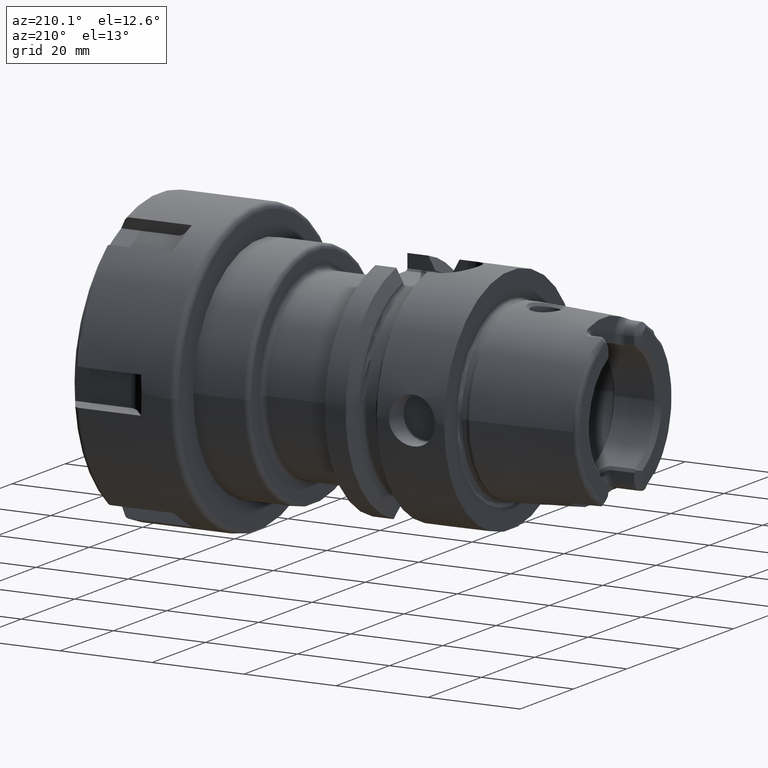
[diagram: clean part render]
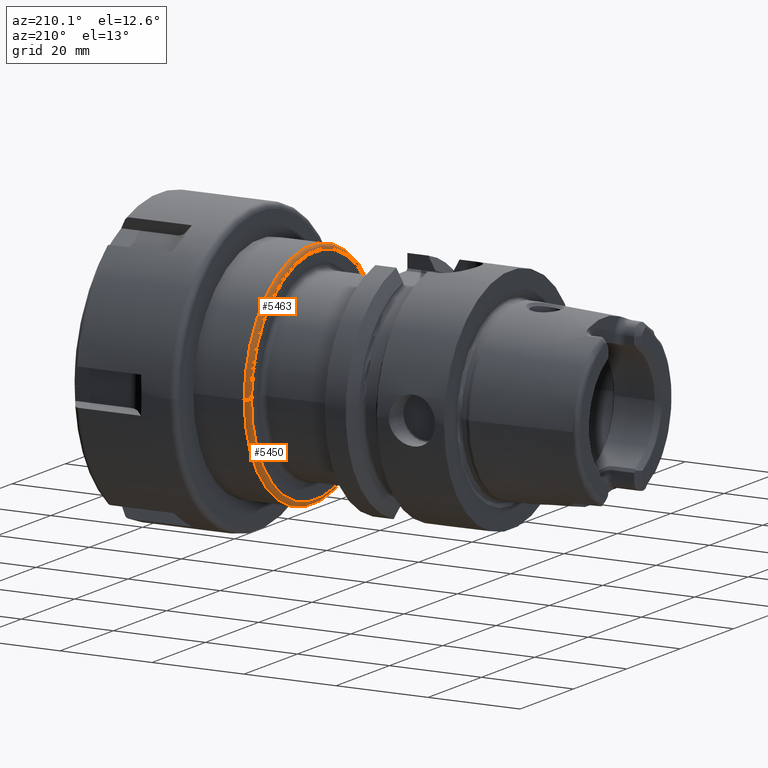
[diagram: same view with one multi-face feature highlighted, each face labeled with its STEP entity id]
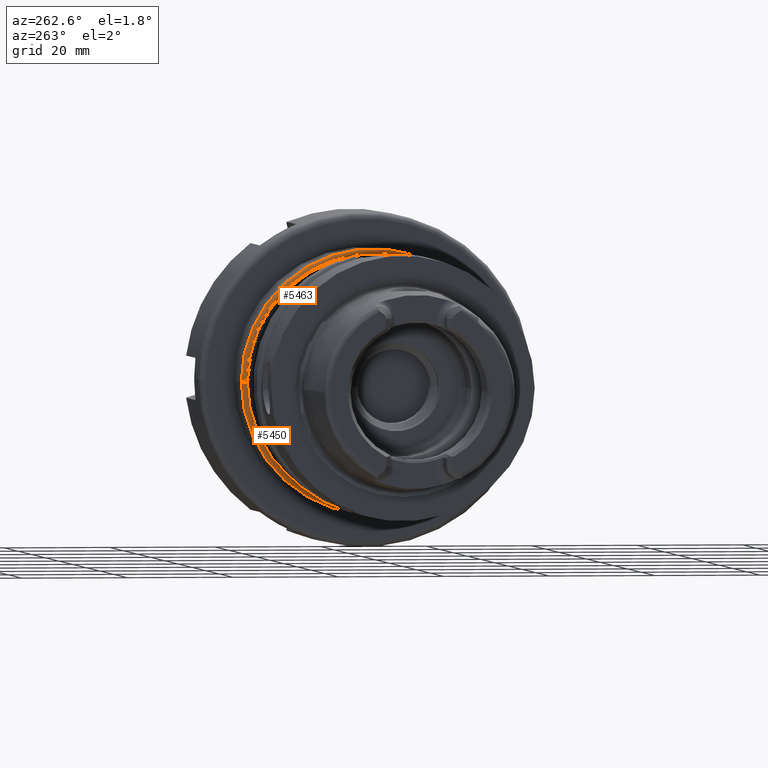
[diagram: same view with one multi-face feature highlighted, each face labeled with its STEP entity id]
A machine part, auxiliary view. The highlighted faces form ONE feature: a constant-radius fillet chain: 2 tangent blend faces with common blend radius 1 mm. The faces share edges in the B-rep.
A second angle (auxiliary view) of the same feature is appended — it is thin or edge-on in the first view.
Their STEP definitions:
[1] entity #5450 (Torus):
#1989=CARTESIAN_POINT('',(4.245E1,0.E0,0.E0));
#1990=DIRECTION('',(-1.E0,0.E0,0.E0));
#1991=DIRECTION('',(0.E0,1.E0,0.E0));
#1992=AXIS2_PLACEMENT_3D('',#1989,#1990,#1991);
#1999=CARTESIAN_POINT('',(4.345E1,2.4E1,2.425837308806E-14));
#2000=DIRECTION('',(0.E0,0.E0,-1.E0));
#2001=DIRECTION('',(-1.E0,0.E0,0.E0));
#2002=AXIS2_PLACEMENT_3D('',#1999,#2000,#2001);
#2004=CARTESIAN_POINT('',(4.345E1,-2.4E1,-3.215483435071E-14));
#2005=DIRECTION('',(0.E0,0.E0,1.E0));
#2006=DIRECTION('',(-1.E0,0.E0,0.E0));
#2007=AXIS2_PLACEMENT_3D('',#2004,#2005,#2006);
#2019=CARTESIAN_POINT('',(4.345E1,0.E0,0.E0));
#2020=DIRECTION('',(-1.E0,0.E0,0.E0));
#2021=DIRECTION('',(0.E0,1.E0,0.E0));
#2022=AXIS2_PLACEMENT_3D('',#2019,#2020,#2021);
#3339=CARTESIAN_POINT('',(4.245E1,2.4E1,1.359729335436E-14));
#3340=CARTESIAN_POINT('',(4.245E1,-2.4E1,-2.719458670871E-14));
#3341=VERTEX_POINT('',#3339);
#3342=VERTEX_POINT('',#3340);
#3343=CARTESIAN_POINT('',(4.345E1,2.5E1,1.416384724412E-14));
#3344=CARTESIAN_POINT('',(4.345E1,-2.5E1,-1.722546424199E-14));
#3345=VERTEX_POINT('',#3343);
#3346=VERTEX_POINT('',#3344);
#5436=CARTESIAN_POINT('',(4.345E1,0.E0,0.E0));
#5437=DIRECTION('',(1.E0,0.E0,0.E0));
#5438=DIRECTION('',(0.E0,9.999904571580E-1,4.368706103323E-3));
#5439=AXIS2_PLACEMENT_3D('',#5436,#5437,#5438);
#5440=TOROIDAL_SURFACE('',#5439,2.4E1,1.E0);
#5441=ORIENTED_EDGE('',*,*,#5425,.T.);
#5443=ORIENTED_EDGE('',*,*,#5442,.T.);
#5445=ORIENTED_EDGE('',*,*,#5444,.F.);
#5447=ORIENTED_EDGE('',*,*,#5446,.F.);
#5448=EDGE_LOOP('',(#5441,#5443,#5445,#5447));
#5449=FACE_OUTER_BOUND('',#5448,.F.);
#5450=ADVANCED_FACE('',(#5449),#5440,.T.);
#1993=CIRCLE('',#1992,2.4E1);
#2003=CIRCLE('',#2002,1.E0);
#2008=CIRCLE('',#2007,1.E0);
#2023=CIRCLE('',#2022,2.5E1);
#5425=EDGE_CURVE('',#3341,#3342,#1993,.T.);
#5442=EDGE_CURVE('',#3342,#3346,#2008,.T.);
#5444=EDGE_CURVE('',#3345,#3346,#2023,.T.);
#5446=EDGE_CURVE('',#3341,#3345,#2003,.T.);
[2] entity #5463 (Torus):
#1994=CARTESIAN_POINT('',(4.245E1,0.E0,0.E0));
#1995=DIRECTION('',(-1.E0,0.E0,0.E0));
#1996=DIRECTION('',(0.E0,-1.E0,0.E0));
#1997=AXIS2_PLACEMENT_3D('',#1994,#1995,#1996);
#1999=CARTESIAN_POINT('',(4.345E1,2.4E1,2.425837308806E-14));
#2000=DIRECTION('',(0.E0,0.E0,-1.E0));
#2001=DIRECTION('',(-1.E0,0.E0,0.E0));
#2002=AXIS2_PLACEMENT_3D('',#1999,#2000,#2001);
#2004=CARTESIAN_POINT('',(4.345E1,-2.4E1,-3.215483435071E-14));
#2005=DIRECTION('',(0.E0,0.E0,1.E0));
#2006=DIRECTION('',(-1.E0,0.E0,0.E0));
#2007=AXIS2_PLACEMENT_3D('',#2004,#2005,#2006);
#2009=CARTESIAN_POINT('',(4.345E1,0.E0,0.E0));
#2010=DIRECTION('',(-1.E0,0.E0,0.E0));
#2011=DIRECTION('',(0.E0,-1.E0,0.E0));
#2012=AXIS2_PLACEMENT_3D('',#2009,#2010,#2011);
#3339=CARTESIAN_POINT('',(4.245E1,2.4E1,1.359729335436E-14));
#3340=CARTESIAN_POINT('',(4.245E1,-2.4E1,-2.719458670871E-14));
#3341=VERTEX_POINT('',#3339);
#3342=VERTEX_POINT('',#3340);
#3343=CARTESIAN_POINT('',(4.345E1,2.5E1,1.416384724412E-14));
#3344=CARTESIAN_POINT('',(4.345E1,-2.5E1,-1.722546424199E-14));
#3345=VERTEX_POINT('',#3343);
#3346=VERTEX_POINT('',#3344);
#5451=CARTESIAN_POINT('',(4.345E1,0.E0,0.E0));
#5452=DIRECTION('',(1.E0,0.E0,0.E0));
#5453=DIRECTION('',(0.E0,-9.999904571580E-1,-4.368706103323E-3));
#5454=AXIS2_PLACEMENT_3D('',#5451,#5452,#5453);
#5455=TOROIDAL_SURFACE('',#5454,2.4E1,1.E0);
#5456=ORIENTED_EDGE('',*,*,#5427,.T.);
#5457=ORIENTED_EDGE('',*,*,#5446,.T.);
#5459=ORIENTED_EDGE('',*,*,#5458,.F.);
#5460=ORIENTED_EDGE('',*,*,#5442,.F.);
#5461=EDGE_LOOP('',(#5456,#5457,#5459,#5460));
#5462=FACE_OUTER_BOUND('',#5461,.F.);
#5463=ADVANCED_FACE('',(#5462),#5455,.T.);
#1998=CIRCLE('',#1997,2.4E1);
#2003=CIRCLE('',#2002,1.E0);
#2008=CIRCLE('',#2007,1.E0);
#2013=CIRCLE('',#2012,2.5E1);
#5427=EDGE_CURVE('',#3342,#3341,#1998,.T.);
#5442=EDGE_CURVE('',#3342,#3346,#2008,.T.);
#5446=EDGE_CURVE('',#3341,#3345,#2003,.T.);
#5458=EDGE_CURVE('',#3346,#3345,#2013,.T.);